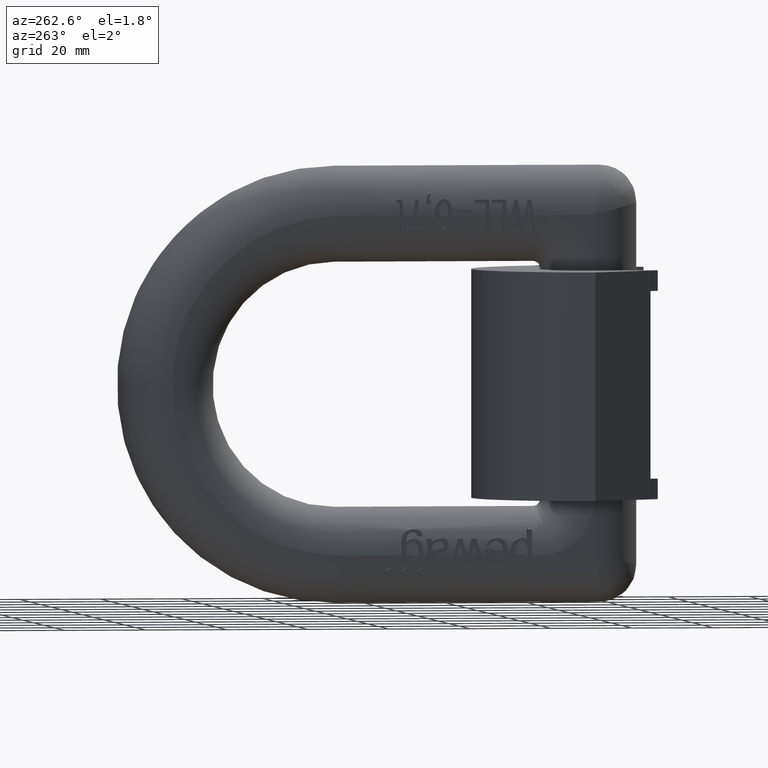
[diagram: clean part render]
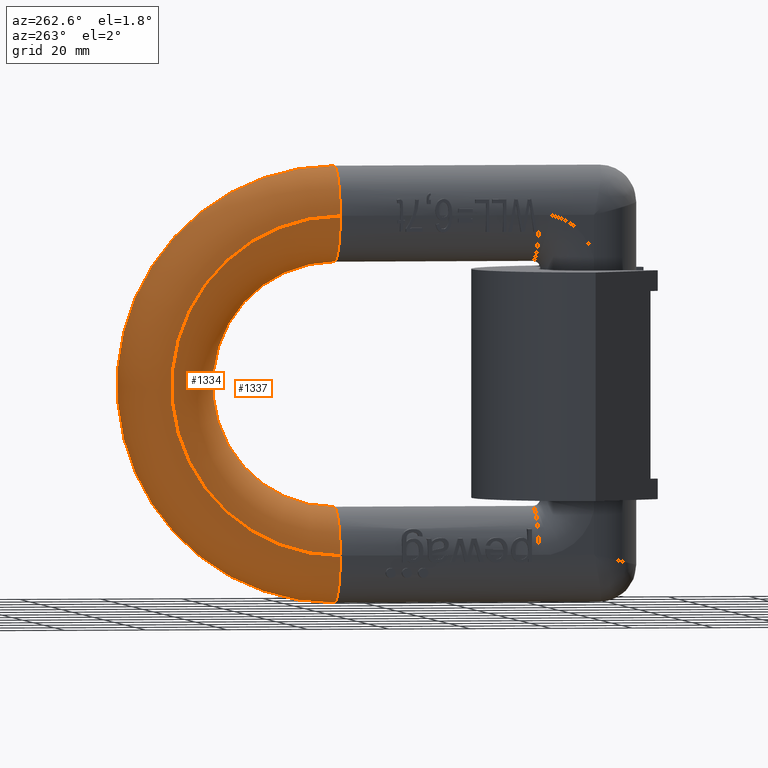
[diagram: same view with one multi-face feature highlighted, each face labeled with its STEP entity id]
A machine part, auxiliary view. The highlighted faces form ONE feature: a constant-radius fillet chain: 2 tangent blend faces with common blend radius 11.9 mm. The faces share edges in the B-rep.
Their STEP definitions:
[1] entity #1334 (Torus):
#187=TOROIDAL_SURFACE('',#8807,41.6,11.9);
#1334=ADVANCED_FACE('',(#1849),#187,.T.);
#1849=FACE_OUTER_BOUND('',#2296,.T.);
#2296=EDGE_LOOP('',(#3236,#3237,#3238,#3239));
#2745=CIRCLE('',#8712,53.5);
#2764=CIRCLE('',#8752,11.9);
#2777=CIRCLE('',#8776,11.9);
#2784=CIRCLE('',#8806,41.6);
#3236=ORIENTED_EDGE('',*,*,#6435,.T.);
#3237=ORIENTED_EDGE('',*,*,#6504,.F.);
#3238=ORIENTED_EDGE('',*,*,#6361,.F.);
#3239=ORIENTED_EDGE('',*,*,#6276,.F.);
#5419=VERTEX_POINT('',#10947);
#5421=VERTEX_POINT('',#10953);
#5482=VERTEX_POINT('',#11249);
#5563=VERTEX_POINT('',#11747);
#6276=EDGE_CURVE('',#5421,#5419,#2745,.T.);
#6361=EDGE_CURVE('',#5419,#5482,#2764,.T.);
#6435=EDGE_CURVE('',#5421,#5563,#2777,.T.);
#6504=EDGE_CURVE('',#5482,#5563,#2784,.T.);
#8712=AXIS2_PLACEMENT_3D('',#10954,#9284,#9285);
#8752=AXIS2_PLACEMENT_3D('',#11281,#9394,#9395);
#8776=AXIS2_PLACEMENT_3D('',#11748,#9463,#9464);
#8806=AXIS2_PLACEMENT_3D('',#12382,#9535,#9536);
#8807=AXIS2_PLACEMENT_3D('',#12383,#9537,#9538);
#9284=DIRECTION('',(1.,0.,0.));
#9285=DIRECTION('',(0.,0.,1.));
#9394=DIRECTION('',(0.,-1.,0.));
#9395=DIRECTION('',(0.,0.,-1.));
#9463=DIRECTION('',(0.,1.,0.));
#9464=DIRECTION('',(0.,0.,1.));
#9535=DIRECTION('',(-1.,0.,0.));
#9536=DIRECTION('',(0.,0.,1.));
#9537=DIRECTION('',(-1.,0.,0.));
#9538=DIRECTION('',(0.,0.,1.));
#10947=CARTESIAN_POINT('',(-0.0999999999999994,78.,53.5));
#10953=CARTESIAN_POINT('',(-0.0999999999999994,78.,-53.5));
#10954=CARTESIAN_POINT('',(-0.0999999999999994,78.,0.));
#11249=CARTESIAN_POINT('',(-12.,78.,41.6));
#11281=CARTESIAN_POINT('',(-0.0999999999999994,78.,41.6));
#11747=CARTESIAN_POINT('',(-12.,78.,-41.6));
#11748=CARTESIAN_POINT('',(-0.0999999999999994,78.,-41.6));
#12382=CARTESIAN_POINT('',(-12.,78.,0.));
#12383=CARTESIAN_POINT('',(-0.0999999999999994,78.,0.));
[2] entity #1337 (Torus):
#188=TOROIDAL_SURFACE('',#8810,41.9,11.9);
#1337=ADVANCED_FACE('',(#1852),#188,.T.);
#1852=FACE_OUTER_BOUND('',#2299,.T.);
#2299=EDGE_LOOP('',(#3251,#3252,#3253,#3254));
#2741=CIRCLE('',#8703,30.);
#2760=CIRCLE('',#8742,11.9);
#2780=CIRCLE('',#8787,11.9);
#2784=CIRCLE('',#8806,41.6);
#3251=ORIENTED_EDGE('',*,*,#6453,.F.);
#3252=ORIENTED_EDGE('',*,*,#6260,.F.);
#3253=ORIENTED_EDGE('',*,*,#6344,.F.);
#3254=ORIENTED_EDGE('',*,*,#6504,.T.);
#5407=VERTEX_POINT('',#10914);
#5409=VERTEX_POINT('',#10920);
#5482=VERTEX_POINT('',#11249);
#5563=VERTEX_POINT('',#11747);
#6260=EDGE_CURVE('',#5409,#5407,#2741,.T.);
#6344=EDGE_CURVE('',#5482,#5409,#2760,.T.);
#6453=EDGE_CURVE('',#5407,#5563,#2780,.T.);
#6504=EDGE_CURVE('',#5482,#5563,#2784,.T.);
#8703=AXIS2_PLACEMENT_3D('',#10921,#9254,#9255);
#8742=AXIS2_PLACEMENT_3D('',#11250,#9366,#9367);
#8787=AXIS2_PLACEMENT_3D('',#11948,#9489,#9490);
#8806=AXIS2_PLACEMENT_3D('',#12382,#9535,#9536);
#8810=AXIS2_PLACEMENT_3D('',#12433,#9546,#9547);
#9254=DIRECTION('',(-1.,0.,0.));
#9255=DIRECTION('',(0.,0.,1.));
#9366=DIRECTION('',(-2.94093635622207E-17,-1.,1.16620065611886E-15));
#9367=DIRECTION('',(0.,-1.16620065611886E-15,-1.));
#9489=DIRECTION('',(2.94093635622207E-17,-1.,1.16620065611886E-15));
#9490=DIRECTION('',(0.,-1.16620065611886E-15,-1.));
#9535=DIRECTION('',(-1.,0.,0.));
#9536=DIRECTION('',(0.,0.,1.));
#9546=DIRECTION('',(-1.,0.,0.));
#9547=DIRECTION('',(0.,0.,1.));
#10914=CARTESIAN_POINT('',(-0.103782113629559,78.,-30.));
#10920=CARTESIAN_POINT('',(-0.103782113629559,78.,30.));
#10921=CARTESIAN_POINT('',(-0.103782113629559,78.,0.));
#11249=CARTESIAN_POINT('',(-12.,78.,41.6));
#11250=CARTESIAN_POINT('',(-0.10378211362956,78.,41.9));
#11747=CARTESIAN_POINT('',(-12.,78.,-41.6));
#11948=CARTESIAN_POINT('',(-0.10378211362956,78.,-41.9));
#12382=CARTESIAN_POINT('',(-12.,78.,0.));
#12433=CARTESIAN_POINT('',(-0.103782113629559,78.,0.));